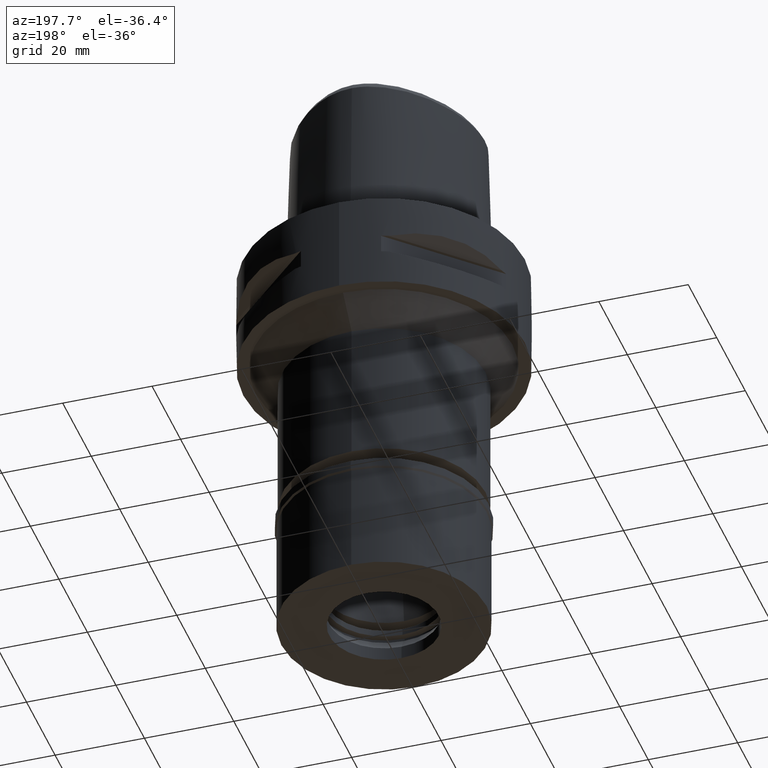
[diagram: clean part render]
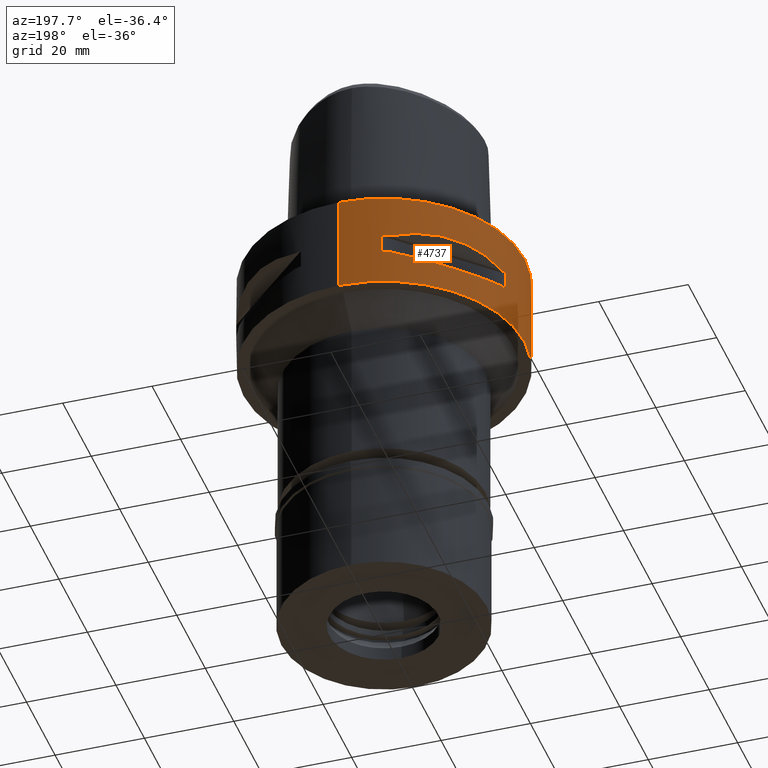
[diagram: same view with one face highlighted and labeled with its STEP entity id]
A machine part, auxiliary view. The second image highlights one B-rep face of the part: STEP entity #4737.
In plain terms, the highlighted cylindrical surface (partial cylindrical patch) has radius 31.5 mm, axis along (0, 0, -1).
Its self-contained STEP definition (entity closure, byte-faithful):
#19 = CARTESIAN_POINT ( 'NONE',  ( 0.0000000000000000000, 31.50000000000000000, 0.0000000000000000000 ) ) ;
#32 = CIRCLE ( 'NONE', #4522, 31.50000000000000711 ) ;
#111 = DIRECTION ( 'NONE',  ( -0.9584925938322735872, 0.2851174276831918153, 0.0000000000000000000 ) ) ;
#122 = VERTEX_POINT ( 'NONE', #4911 ) ;
#127 = VECTOR ( 'NONE', #1313, 1000.000000000000000 ) ;
#134 = LINE ( 'NONE', #3239, #1428 ) ;
#143 = EDGE_CURVE ( 'NONE', #4567, #2209, #285, .T. ) ;
#153 = DIRECTION ( 'NONE',  ( 0.0000000000000000000, -1.000000000000000000, 0.0000000000000000000 ) ) ;
#167 = CARTESIAN_POINT ( 'NONE',  ( -25.37277178164059066, -18.81455742168904521, -8.309746333112720151 ) ) ;
#173 = LINE ( 'NONE', #625, #127 ) ;
#190 = CARTESIAN_POINT ( 'NONE',  ( -18.81462633026355036, -25.37272068403002834, -8.309724968617135943 ) ) ;
#224 = CARTESIAN_POINT ( 'NONE',  ( -8.981198972016999349, 30.19251670572000279, -9.950000000000001066 ) ) ;
#227 = CARTESIAN_POINT ( 'NONE',  ( -14.84422749205291048, 27.88214534467231687, -8.906206096483270329 ) ) ;
#229 = CARTESIAN_POINT ( 'NONE',  ( -29.71690375017999841, 10.44775724750000023, -14.05000000000000071 ) ) ;
#250 = DIRECTION ( 'NONE',  ( -0.9584925938322735872, -0.2851174276831918153, 0.0000000000000000000 ) ) ;
#261 = CARTESIAN_POINT ( 'NONE',  ( -10.44775724750000023, -29.71690375017999841, -14.05000000000000071 ) ) ;
#285 = CIRCLE ( 'NONE', #4375, 31.50000000000000711 ) ;
#307 = EDGE_CURVE ( 'NONE', #4225, #2209, #134, .T. ) ;
#310 = CARTESIAN_POINT ( 'NONE',  ( 0.0000000000000000000, 0.0000000000000000000, 0.0000000000000000000 ) ) ;
#343 = CARTESIAN_POINT ( 'NONE',  ( -17.35163608579731687, -26.29071741524046146, -15.46976201925743055 ) ) ;
#361 = CARTESIAN_POINT ( 'NONE',  ( -18.86897208077244059, 25.32725744464587336, -15.69588095933971772 ) ) ;
#365 = B_SPLINE_CURVE_WITH_KNOTS ( 'NONE', 3,
 ( #4164, #1130, #3871, #3787, #3421, #2363, #408, #3053, #3807, #3123, #361, #1539, #3076, #1151, #1964, #3492, #1583, #946, #454, #3898, #1271, #1629, #4673, #1699 ),
 .UNSPECIFIED., .F., .F.,
 ( 4, 1, 1, 1, 1, 1, 2, 2, 2, 1, 1, 1, 1, 1, 2, 2, 4 ),
 ( 0.0000000000000000000, 0.1249999999999933942, 0.1874999999999900913, 0.2187499999999883982, 0.2343749999999875655, 0.2421874999999871492, 0.2460937499999869271, 0.2499999999999867328, 0.4999999999999860112, 0.6249999999999854561, 0.6874999999999854561, 0.7187499999999855671, 0.7343749999999857891, 0.7421874999999859002, 0.7460937499999860112, 0.7499999999999861222, 1.000000000000000000 ),
 .UNSPECIFIED. ) ;
#366 = AXIS2_PLACEMENT_3D ( 'NONE', #1751, #3627, #153 ) ;
#374 = CARTESIAN_POINT ( 'NONE',  ( -29.71690375017999841, 10.44775724750000023, -9.950000000002001244 ) ) ;
#375 = ORIENTED_EDGE ( 'NONE', *, *, #1153, .T. ) ;
#397 = EDGE_CURVE ( 'NONE', #796, #445, #1273, .T. ) ;
#408 = CARTESIAN_POINT ( 'NONE',  ( -16.70616724746441761, 26.70521063584523347, -15.37546661818105953 ) ) ;
#424 = CIRCLE ( 'NONE', #1725, 31.50000000000000000 ) ;
#429 = VERTEX_POINT ( 'NONE', #3979 ) ;
#437 = CARTESIAN_POINT ( 'NONE',  ( -30.19251670572000279, 8.981198972019999616, -14.05000000000000071 ) ) ;
#441 = VECTOR ( 'NONE', #2529, 1000.000000000000000 ) ;
#445 = VERTEX_POINT ( 'NONE', #4327 ) ;
#454 = CARTESIAN_POINT ( 'NONE',  ( -26.48642424310701671, 17.05047092244375406, -15.42670883407967786 ) ) ;
#468 = ORIENTED_EDGE ( 'NONE', *, *, #307, .F. ) ;
#500 = FACE_OUTER_BOUND ( 'NONE', #943, .T. ) ;
#612 = EDGE_CURVE ( 'NONE', #4446, #3719, #173, .T. ) ;
#625 = CARTESIAN_POINT ( 'NONE',  ( -30.19251670572000279, 8.981198972016999349, -14.05000000000000071 ) ) ;
#640 = CARTESIAN_POINT ( 'NONE',  ( -26.58330558444649583, -16.89910283486696940, -15.40446471307537202 ) ) ;
#656 = DIRECTION ( 'NONE',  ( 0.0000000000000000000, 0.0000000000000000000, -1.000000000000000000 ) ) ;
#724 = DIRECTION ( 'NONE',  ( 0.0000000000000000000, 0.0000000000000000000, 1.000000000000000000 ) ) ;
#751 = ORIENTED_EDGE ( 'NONE', *, *, #3835, .F. ) ;
#762 = CARTESIAN_POINT ( 'NONE',  ( 0.0000000000000000000, 0.0000000000000000000, -9.950000000000001066 ) ) ;
#796 = VERTEX_POINT ( 'NONE', #2354 ) ;
#876 = CARTESIAN_POINT ( 'NONE',  ( 0.0000000000000000000, 0.0000000000000000000, -14.05000000000000071 ) ) ;
#911 = CARTESIAN_POINT ( 'NONE',  ( -10.44775724750000023, 29.71690375017999841, -14.05000000000000071 ) ) ;
#914 = AXIS2_PLACEMENT_3D ( 'NONE', #4448, #1756, #4745 ) ;
#943 = EDGE_LOOP ( 'NONE', ( #4358, #751, #375, #2426 ) ) ;
#945 = CYLINDRICAL_SURFACE ( 'NONE', #366, 31.50000000000000000 ) ;
#946 = CARTESIAN_POINT ( 'NONE',  ( -26.42800887047799563, 17.14106442934821573, -15.43984550238794462 ) ) ;
#947 = DIRECTION ( 'NONE',  ( 0.0000000000000000000, 0.0000000000000000000, -1.000000000000000000 ) ) ;
#959 = CARTESIAN_POINT ( 'NONE',  ( -23.90617837150508151, -20.64154884324741346, -8.160627831300899970 ) ) ;
#994 = CARTESIAN_POINT ( 'NONE',  ( -18.81455742168902390, 25.37277178164060842, -8.309746333112721928 ) ) ;
#996 = DIRECTION ( 'NONE',  ( 0.0000000000000000000, -1.000000000000000000, 0.0000000000000000000 ) ) ;
#1000 = CIRCLE ( 'NONE', #1977, 31.50000000000001776 ) ;
#1020 = CARTESIAN_POINT ( 'NONE',  ( -20.64154884324738504, 23.90617837150510283, -8.160627831300898194 ) ) ;
#1027 = EDGE_CURVE ( 'NONE', #122, #4567, #3552, .T. ) ;
#1031 = CARTESIAN_POINT ( 'NONE',  ( -20.18579225685413903, -24.23018836746430082, -15.78559396979327367 ) ) ;
#1050 = VERTEX_POINT ( 'NONE', #3241 ) ;
#1059 = VERTEX_POINT ( 'NONE', #2416 ) ;
#1096 = CIRCLE ( 'NONE', #1910, 31.50000000000001776 ) ;
#1110 = CARTESIAN_POINT ( 'NONE',  ( -17.14106442934815533, -26.42800887047804181, -15.43984550238795350 ) ) ;
#1130 = CARTESIAN_POINT ( 'NONE',  ( -11.58970337496597658, 29.31542262583877800, -14.35229357167647635 ) ) ;
#1135 = VERTEX_POINT ( 'NONE', #3395 ) ;
#1151 = CARTESIAN_POINT ( 'NONE',  ( -24.23018836746388516, 20.18579225685454404, -15.78559396979325946 ) ) ;
#1153 = EDGE_CURVE ( 'NONE', #1135, #3385, #424, .T. ) ;
#1163 = VERTEX_POINT ( 'NONE', #229 ) ;
#1206 = VERTEX_POINT ( 'NONE', #3312 ) ;
#1226 = ORIENTED_EDGE ( 'NONE', *, *, #4222, .T. ) ;
#1254 = VECTOR ( 'NONE', #947, 1000.000000000000000 ) ;
#1262 = ORIENTED_EDGE ( 'NONE', *, *, #2648, .F. ) ;
#1271 = CARTESIAN_POINT ( 'NONE',  ( -26.54368690921824125, 16.96123479565122238, -15.41365572341632095 ) ) ;
#1273 = LINE ( 'NONE', #2437, #1254 ) ;
#1313 = DIRECTION ( 'NONE',  ( 0.0000000000000000000, 0.0000000000000000000, 1.000000000000000000 ) ) ;
#1322 = CARTESIAN_POINT ( 'NONE',  ( -29.71690375017999841, 10.44775724750000023, -9.950000000002001244 ) ) ;
#1351 = CARTESIAN_POINT ( 'NONE',  ( -12.70092055735352510, 28.92474506843120707, -9.353547358217946694 ) ) ;
#1415 = CARTESIAN_POINT ( 'NONE',  ( -28.62019653468112068, -13.25636937905766999, -14.74888225542022369 ) ) ;
#1428 = VECTOR ( 'NONE', #2841, 1000.000000000000000 ) ;
#1444 = CARTESIAN_POINT ( 'NONE',  ( -26.64486562695897121, -16.80193241490862022, -15.38992683736031708 ) ) ;
#1470 = CARTESIAN_POINT ( 'NONE',  ( -26.60451452154907059, -16.86571563436881149, -15.39949295786330197 ) ) ;
#1499 = DIRECTION ( 'NONE',  ( 0.0000000000000000000, 0.0000000000000000000, -1.000000000000000000 ) ) ;
#1504 = ORIENTED_EDGE ( 'NONE', *, *, #1027, .T. ) ;
#1507 = CIRCLE ( 'NONE', #3886, 31.50000000000000711 ) ;
#1528 = EDGE_CURVE ( 'NONE', #3960, #1050, #3809, .T. ) ;
#1539 = CARTESIAN_POINT ( 'NONE',  ( -20.65093790435075860, 23.89673728057023183, -15.83935804902264444 ) ) ;
#1561 = CARTESIAN_POINT ( 'NONE',  ( -8.981198972019999616, -30.19251670572000279, -14.05000000000000071 ) ) ;
#1583 = CARTESIAN_POINT ( 'NONE',  ( -26.29071741524037265, 17.35163608579741634, -15.46976201925743055 ) ) ;
#1587 = EDGE_CURVE ( 'NONE', #4536, #2944, #4127, .T. ) ;
#1620 = ORIENTED_EDGE ( 'NONE', *, *, #612, .F. ) ;
#1629 = CARTESIAN_POINT ( 'NONE',  ( -27.86285265926828814, 14.89252659056578487, -15.10765629751800354 ) ) ;
#1631 = CARTESIAN_POINT ( 'NONE',  ( 0.0000000000000000000, 31.50000000000000000, 0.0000000000000000000 ) ) ;
#1665 = CIRCLE ( 'NONE', #3889, 31.50000000000001776 ) ;
#1699 = CARTESIAN_POINT ( 'NONE',  ( -29.71690375017999841, 10.44775724750000023, -14.05000000000000071 ) ) ;
#1725 = AXIS2_PLACEMENT_3D ( 'NONE', #310, #656, #996 ) ;
#1751 = CARTESIAN_POINT ( 'NONE',  ( 0.0000000000000000000, 0.0000000000000000000, 3.950000000000000178 ) ) ;
#1756 = DIRECTION ( 'NONE',  ( 0.0000000000000000000, 0.0000000000000000000, -1.000000000000000000 ) ) ;
#1773 = ORIENTED_EDGE ( 'NONE', *, *, #3762, .T. ) ;
#1808 = DIRECTION ( 'NONE',  ( 0.0000000000000000000, 0.0000000000000000000, -1.000000000000000000 ) ) ;
#1873 = CARTESIAN_POINT ( 'NONE',  ( -14.89252659056515427, -27.86285265926851551, -15.10765629751784012 ) ) ;
#1910 = AXIS2_PLACEMENT_3D ( 'NONE', #3404, #1499, #2022 ) ;
#1964 = CARTESIAN_POINT ( 'NONE',  ( -25.43927894892473418, 18.59229662064630517, -15.62866126334695061 ) ) ;
#1969 = DIRECTION ( 'NONE',  ( 0.0000000000000000000, 0.0000000000000000000, -1.000000000000000000 ) ) ;
#1977 = AXIS2_PLACEMENT_3D ( 'NONE', #2907, #2121, #250 ) ;
#2022 = DIRECTION ( 'NONE',  ( -0.2851174276831918153, -0.9584925938322735872, 0.0000000000000000000 ) ) ;
#2024 = EDGE_CURVE ( 'NONE', #4781, #1163, #365, .T. ) ;
#2053 = ORIENTED_EDGE ( 'NONE', *, *, #3756, .T. ) ;
#2100 = CARTESIAN_POINT ( 'NONE',  ( -10.44775724750000023, -29.71690375017999841, -9.950000000002001244 ) ) ;
#2109 = CARTESIAN_POINT ( 'NONE',  ( -28.92474506843118220, -12.70092055735351977, -9.353547358217939589 ) ) ;
#2121 = DIRECTION ( 'NONE',  ( 0.0000000000000000000, 0.0000000000000000000, 1.000000000000000000 ) ) ;
#2141 = VERTEX_POINT ( 'NONE', #374 ) ;
#2181 = EDGE_CURVE ( 'NONE', #1059, #445, #1507, .T. ) ;
#2198 = ORIENTED_EDGE ( 'NONE', *, *, #1587, .T. ) ;
#2208 = CARTESIAN_POINT ( 'NONE',  ( -17.05047092244371854, -26.48642424310703447, -15.42670883407968674 ) ) ;
#2209 = VERTEX_POINT ( 'NONE', #4587 ) ;
#2223 = DIRECTION ( 'NONE',  ( 0.0000000000000000000, 0.0000000000000000000, 1.000000000000000000 ) ) ;
#2252 = DIRECTION ( 'NONE',  ( 0.0000000000000000000, 1.000000000000000000, 0.0000000000000000000 ) ) ;
#2321 = AXIS2_PLACEMENT_3D ( 'NONE', #4521, #2753, #2252 ) ;
#2330 = B_SPLINE_CURVE_WITH_KNOTS ( 'NONE', 3,
 ( #3791, #4061, #1415, #2968, #4111, #3035, #4885, #1444, #1470, #640, #3013, #4909, #4460, #1031, #2651, #3379, #343, #1110, #2208, #3713, #2676, #1873, #3431, #261 ),
 .UNSPECIFIED., .F., .F.,
 ( 4, 1, 1, 1, 1, 1, 2, 2, 2, 1, 1, 1, 1, 1, 2, 2, 4 ),
 ( 0.0000000000000000000, 0.1250000000000017486, 0.1875000000000026090, 0.2187500000000033029, 0.2343750000000038858, 0.2421875000000042744, 0.2460937500000044686, 0.2500000000000046629, 0.5000000000000101030, 0.6250000000000126565, 0.6875000000000138778, 0.7187500000000146549, 0.7343750000000150990, 0.7421875000000150990, 0.7460937500000149880, 0.7500000000000149880, 1.000000000000000000 ),
 .UNSPECIFIED. ) ;
#2333 = DIRECTION ( 'NONE',  ( -0.2851174276831918153, 0.9584925938322735872, 0.0000000000000000000 ) ) ;
#2354 = CARTESIAN_POINT ( 'NONE',  ( -30.19251670572000279, -8.981198972019999616, -9.950000000000001066 ) ) ;
#2363 = CARTESIAN_POINT ( 'NONE',  ( -16.48208282229953880, 26.84474411198595689, -15.34094883778485041 ) ) ;
#2416 = CARTESIAN_POINT ( 'NONE',  ( -29.71690375017999841, -10.44775724750000023, -14.05000000000000071 ) ) ;
#2417 = LINE ( 'NONE', #19, #4533 ) ;
#2421 = ORIENTED_EDGE ( 'NONE', *, *, #397, .F. ) ;
#2426 = ORIENTED_EDGE ( 'NONE', *, *, #4181, .T. ) ;
#2437 = CARTESIAN_POINT ( 'NONE',  ( -30.19251670572000279, -8.981198972016999349, -9.950000000000001066 ) ) ;
#2465 = CARTESIAN_POINT ( 'NONE',  ( 0.0000000000000000000, 0.0000000000000000000, -14.05000000000000071 ) ) ;
#2507 = LINE ( 'NONE', #224, #441 ) ;
#2529 = DIRECTION ( 'NONE',  ( 0.0000000000000000000, 0.0000000000000000000, -1.000000000000000000 ) ) ;
#2563 = CARTESIAN_POINT ( 'NONE',  ( -27.88210502987329775, 14.84430321572441969, -8.906184731987691450 ) ) ;
#2569 = B_SPLINE_CURVE_WITH_KNOTS ( 'NONE', 3,
 ( #4773, #1351, #227, #994, #1020, #4793, #2610, #2563, #2929, #1322 ),
 .UNSPECIFIED., .F., .F.,
 ( 4, 2, 2, 2, 4 ),
 ( 0.0000000000000000000, 0.2500000000000001110, 0.5000000000000000000, 0.7500000000000000000, 1.000000000000000000 ),
 .UNSPECIFIED. ) ;
#2587 = DIRECTION ( 'NONE',  ( -0.9433937698468619626, 0.3316748332540863653, 0.0000000000000000000 ) ) ;
#2610 = CARTESIAN_POINT ( 'NONE',  ( -25.37272068403004610, 18.81462633026353259, -8.309724968617135943 ) ) ;
#2648 = EDGE_CURVE ( 'NONE', #1059, #429, #2330, .T. ) ;
#2651 = CARTESIAN_POINT ( 'NONE',  ( -18.59229662064599609, -25.43927894892505392, -15.62866126334696482 ) ) ;
#2664 = CARTESIAN_POINT ( 'NONE',  ( 0.0000000000000000000, 31.50000000000000000, -22.00000000000000000 ) ) ;
#2676 = CARTESIAN_POINT ( 'NONE',  ( -16.96123479565122238, -26.54368690921823060, -15.41365572341632095 ) ) ;
#2753 = DIRECTION ( 'NONE',  ( 0.0000000000000000000, 0.0000000000000000000, 1.000000000000000000 ) ) ;
#2841 = DIRECTION ( 'NONE',  ( 0.0000000000000000000, 0.0000000000000000000, 1.000000000000000000 ) ) ;
#2860 = CARTESIAN_POINT ( 'NONE',  ( 0.0000000000000000000, 0.0000000000000000000, -9.950000000000001066 ) ) ;
#2907 = CARTESIAN_POINT ( 'NONE',  ( 0.0000000000000000000, 0.0000000000000000000, -9.950000000000001066 ) ) ;
#2929 = CARTESIAN_POINT ( 'NONE',  ( -28.92472615206972364, 12.70097436179018402, -9.353533115220887595 ) ) ;
#2944 = VERTEX_POINT ( 'NONE', #3683 ) ;
#2968 = CARTESIAN_POINT ( 'NONE',  ( -27.64634172017876068, -15.11986997311391612, -15.11207862404153524 ) ) ;
#3013 = CARTESIAN_POINT ( 'NONE',  ( -25.32725744466094753, -18.86897208075735222, -15.69588095933972838 ) ) ;
#3022 = DIRECTION ( 'NONE',  ( 0.0000000000000000000, 0.0000000000000000000, 1.000000000000000000 ) ) ;
#3035 = CARTESIAN_POINT ( 'NONE',  ( -26.84474411198741350, -16.48208282229545318, -15.34094883778379348 ) ) ;
#3053 = CARTESIAN_POINT ( 'NONE',  ( -16.80193241490983524, 26.64486562695853422, -15.38992683736061551 ) ) ;
#3076 = CARTESIAN_POINT ( 'NONE',  ( -23.08532645888766055, 21.46242677077792393, -15.83938991065621238 ) ) ;
#3123 = CARTESIAN_POINT ( 'NONE',  ( -16.89910283486671361, 26.58330558444672675, -15.40446471307534004 ) ) ;
#3239 = CARTESIAN_POINT ( 'NONE',  ( -8.981198972016999349, -30.19251670572000279, -14.05000000000000071 ) ) ;
#3241 = CARTESIAN_POINT ( 'NONE',  ( 0.0000000000000000000, -31.50000000000000000, -22.00000000000000000 ) ) ;
#3284 = FACE_BOUND ( 'NONE', #3318, .T. ) ;
#3299 = CARTESIAN_POINT ( 'NONE',  ( -12.70097436179018402, -28.92472615206973430, -9.353533115220887595 ) ) ;
#3312 = CARTESIAN_POINT ( 'NONE',  ( -8.981198972016999349, 30.19251670572000279, -14.05000000000000071 ) ) ;
#3318 = EDGE_LOOP ( 'NONE', ( #2053, #1620, #1226, #3989, #3861, #4696, #2198, #1773 ) ) ;
#3326 = CARTESIAN_POINT ( 'NONE',  ( -29.71690375017999841, -10.44775724750000023, -9.950000000002001244 ) ) ;
#3379 = CARTESIAN_POINT ( 'NONE',  ( -17.76952662671760308, -26.01217882835248929, -15.52665221626392800 ) ) ;
#3385 = VERTEX_POINT ( 'NONE', #1631 ) ;
#3395 = CARTESIAN_POINT ( 'NONE',  ( 0.0000000000000000000, -31.50000000000000000, 0.0000000000000000000 ) ) ;
#3404 = CARTESIAN_POINT ( 'NONE',  ( 0.0000000000000000000, 0.0000000000000000000, -14.05000000000000071 ) ) ;
#3421 = CARTESIAN_POINT ( 'NONE',  ( -16.03138450080076893, 27.11872488588798191, -15.26880420108349234 ) ) ;
#3424 = VECTOR ( 'NONE', #1808, 1000.000000000000000 ) ;
#3431 = CARTESIAN_POINT ( 'NONE',  ( -12.73197616787390629, -28.91382665369116722, -14.65467361753813513 ) ) ;
#3492 = CARTESIAN_POINT ( 'NONE',  ( -26.01217882835230810, 17.76952662671778427, -15.52665221626391556 ) ) ;
#3552 = B_SPLINE_CURVE_WITH_KNOTS ( 'NONE', 3,
 ( #3326, #2109, #4388, #167, #959, #4782, #190, #3990, #3299, #4734 ),
 .UNSPECIFIED., .F., .F.,
 ( 4, 2, 2, 2, 4 ),
 ( 0.0000000000000000000, 0.2500000000000000000, 0.5000000000000000000, 0.7500000000000000000, 1.000000000000000000 ),
 .UNSPECIFIED. ) ;
#3573 = CIRCLE ( 'NONE', #914, 31.50000000000000711 ) ;
#3627 = DIRECTION ( 'NONE',  ( 0.0000000000000000000, 0.0000000000000000000, -1.000000000000000000 ) ) ;
#3630 = LINE ( 'NONE', #4377, #3424 ) ;
#3683 = CARTESIAN_POINT ( 'NONE',  ( -10.44775724750000023, 29.71690375017999841, -9.950000000002001244 ) ) ;
#3691 = ORIENTED_EDGE ( 'NONE', *, *, #4146, .T. ) ;
#3713 = CARTESIAN_POINT ( 'NONE',  ( -16.98999780422225214, -26.52527364208797778, -15.41788098766626369 ) ) ;
#3719 = VERTEX_POINT ( 'NONE', #4703 ) ;
#3733 = ORIENTED_EDGE ( 'NONE', *, *, #2181, .T. ) ;
#3756 = EDGE_CURVE ( 'NONE', #2141, #3719, #32, .T. ) ;
#3762 = EDGE_CURVE ( 'NONE', #2944, #2141, #2569, .T. ) ;
#3787 = CARTESIAN_POINT ( 'NONE',  ( -15.11986997312707004, 27.64634172017413860, -15.11207862404499203 ) ) ;
#3791 = CARTESIAN_POINT ( 'NONE',  ( -29.71690375017999841, -10.44775724750000023, -14.05000000000000071 ) ) ;
#3793 = CARTESIAN_POINT ( 'NONE',  ( 0.0000000000000000000, 0.0000000000000000000, -9.950000000000001066 ) ) ;
#3807 = CARTESIAN_POINT ( 'NONE',  ( -16.86571563436942256, 26.60451452154885033, -15.39949295786344408 ) ) ;
#3809 = CIRCLE ( 'NONE', #2321, 31.50000000000000000 ) ;
#3811 = EDGE_CURVE ( 'NONE', #796, #122, #1000, .T. ) ;
#3835 = EDGE_CURVE ( 'NONE', #1135, #1050, #3630, .T. ) ;
#3861 = ORIENTED_EDGE ( 'NONE', *, *, #3912, .T. ) ;
#3871 = CARTESIAN_POINT ( 'NONE',  ( -13.25636937907522750, 28.62019653467492830, -14.74888225542484399 ) ) ;
#3886 = AXIS2_PLACEMENT_3D ( 'NONE', #876, #4685, #4223 ) ;
#3889 = AXIS2_PLACEMENT_3D ( 'NONE', #2465, #1969, #111 ) ;
#3898 = CARTESIAN_POINT ( 'NONE',  ( -26.52527364208796712, 16.98999780422226635, -15.41788098766625659 ) ) ;
#3905 = DIRECTION ( 'NONE',  ( 0.0000000000000000000, 0.0000000000000000000, -1.000000000000000000 ) ) ;
#3912 = EDGE_CURVE ( 'NONE', #4781, #1206, #3573, .T. ) ;
#3960 = VERTEX_POINT ( 'NONE', #2664 ) ;
#3979 = CARTESIAN_POINT ( 'NONE',  ( -10.44775724750000023, -29.71690375017999841, -14.05000000000000071 ) ) ;
#3983 = CARTESIAN_POINT ( 'NONE',  ( -8.981198972019999616, 30.19251670572000279, -9.950000000000001066 ) ) ;
#3989 = ORIENTED_EDGE ( 'NONE', *, *, #2024, .F. ) ;
#3990 = CARTESIAN_POINT ( 'NONE',  ( -14.84430321572443923, -27.88210502987328354, -8.906184731987691450 ) ) ;
#4043 = ORIENTED_EDGE ( 'NONE', *, *, #143, .T. ) ;
#4061 = CARTESIAN_POINT ( 'NONE',  ( -29.31542262584231651, -11.58970337495594194, -14.35229357167384912 ) ) ;
#4111 = CARTESIAN_POINT ( 'NONE',  ( -27.11872488589068553, -16.03138450079309862, -15.26880420108148506 ) ) ;
#4127 = CIRCLE ( 'NONE', #4752, 31.50000000000001776 ) ;
#4146 = EDGE_CURVE ( 'NONE', #4225, #429, #1096, .T. ) ;
#4164 = CARTESIAN_POINT ( 'NONE',  ( -10.44775724750000023, 29.71690375017999841, -14.05000000000000071 ) ) ;
#4181 = EDGE_CURVE ( 'NONE', #3385, #3960, #2417, .T. ) ;
#4222 = EDGE_CURVE ( 'NONE', #4446, #1163, #1665, .T. ) ;
#4223 = DIRECTION ( 'NONE',  ( -0.9433937698468619626, -0.3316748332540863653, 0.0000000000000000000 ) ) ;
#4225 = VERTEX_POINT ( 'NONE', #1561 ) ;
#4266 = EDGE_LOOP ( 'NONE', ( #4043, #468, #3691, #1262, #3733, #2421, #4508, #1504 ) ) ;
#4327 = CARTESIAN_POINT ( 'NONE',  ( -30.19251670572000279, -8.981198972016999349, -14.05000000000000071 ) ) ;
#4358 = ORIENTED_EDGE ( 'NONE', *, *, #1528, .T. ) ;
#4373 = FACE_BOUND ( 'NONE', #4266, .T. ) ;
#4375 = AXIS2_PLACEMENT_3D ( 'NONE', #3793, #724, #4540 ) ;
#4377 = CARTESIAN_POINT ( 'NONE',  ( 0.0000000000000000000, -31.50000000000000000, 0.0000000000000000000 ) ) ;
#4388 = CARTESIAN_POINT ( 'NONE',  ( -27.88214534467230976, -14.84422749205293357, -8.906206096483272106 ) ) ;
#4446 = VERTEX_POINT ( 'NONE', #437 ) ;
#4448 = CARTESIAN_POINT ( 'NONE',  ( 0.0000000000000000000, 0.0000000000000000000, -14.05000000000000071 ) ) ;
#4460 = CARTESIAN_POINT ( 'NONE',  ( -21.46242677077769656, -23.08532645888790213, -15.83938991065623014 ) ) ;
#4508 = ORIENTED_EDGE ( 'NONE', *, *, #3811, .T. ) ;
#4521 = CARTESIAN_POINT ( 'NONE',  ( 0.0000000000000000000, 0.0000000000000000000, -22.00000000000000000 ) ) ;
#4522 = AXIS2_PLACEMENT_3D ( 'NONE', #2860, #2223, #2587 ) ;
#4533 = VECTOR ( 'NONE', #3905, 1000.000000000000000 ) ;
#4536 = VERTEX_POINT ( 'NONE', #3983 ) ;
#4540 = DIRECTION ( 'NONE',  ( -0.3316748332540863653, -0.9433937698468619626, 0.0000000000000000000 ) ) ;
#4567 = VERTEX_POINT ( 'NONE', #2100 ) ;
#4587 = CARTESIAN_POINT ( 'NONE',  ( -8.981198972016999349, -30.19251670572000279, -9.950000000000001066 ) ) ;
#4673 = CARTESIAN_POINT ( 'NONE',  ( -28.91382665369093630, 12.73197616787454578, -14.65467361753829323 ) ) ;
#4685 = DIRECTION ( 'NONE',  ( 0.0000000000000000000, 0.0000000000000000000, -1.000000000000000000 ) ) ;
#4696 = ORIENTED_EDGE ( 'NONE', *, *, #4802, .F. ) ;
#4703 = CARTESIAN_POINT ( 'NONE',  ( -30.19251670572000279, 8.981198972016999349, -9.950000000000001066 ) ) ;
#4734 = CARTESIAN_POINT ( 'NONE',  ( -10.44775724750000023, -29.71690375017999841, -9.950000000002001244 ) ) ;
#4737 = ADVANCED_FACE ( 'NONE', ( #500, #3284, #4373 ), #945, .T. ) ;
#4745 = DIRECTION ( 'NONE',  ( -0.3316748332540863653, 0.9433937698468619626, 0.0000000000000000000 ) ) ;
#4752 = AXIS2_PLACEMENT_3D ( 'NONE', #762, #3022, #2333 ) ;
#4773 = CARTESIAN_POINT ( 'NONE',  ( -10.44775724750000023, 29.71690375017999841, -9.950000000002001244 ) ) ;
#4781 = VERTEX_POINT ( 'NONE', #911 ) ;
#4782 = CARTESIAN_POINT ( 'NONE',  ( -20.64154884324739569, -23.90617837150510283, -8.160613588479780134 ) ) ;
#4793 = CARTESIAN_POINT ( 'NONE',  ( -23.90617837150510638, 20.64154884324738504, -8.160613588479780134 ) ) ;
#4802 = EDGE_CURVE ( 'NONE', #4536, #1206, #2507, .T. ) ;
#4885 = CARTESIAN_POINT ( 'NONE',  ( -26.70521063584596888, -16.70616724746230730, -15.37546661818052307 ) ) ;
#4909 = CARTESIAN_POINT ( 'NONE',  ( -23.89673728057072211, -20.65093790435025767, -15.83935804902266931 ) ) ;
#4911 = CARTESIAN_POINT ( 'NONE',  ( -29.71690375017999841, -10.44775724750000023, -9.950000000002001244 ) ) ;